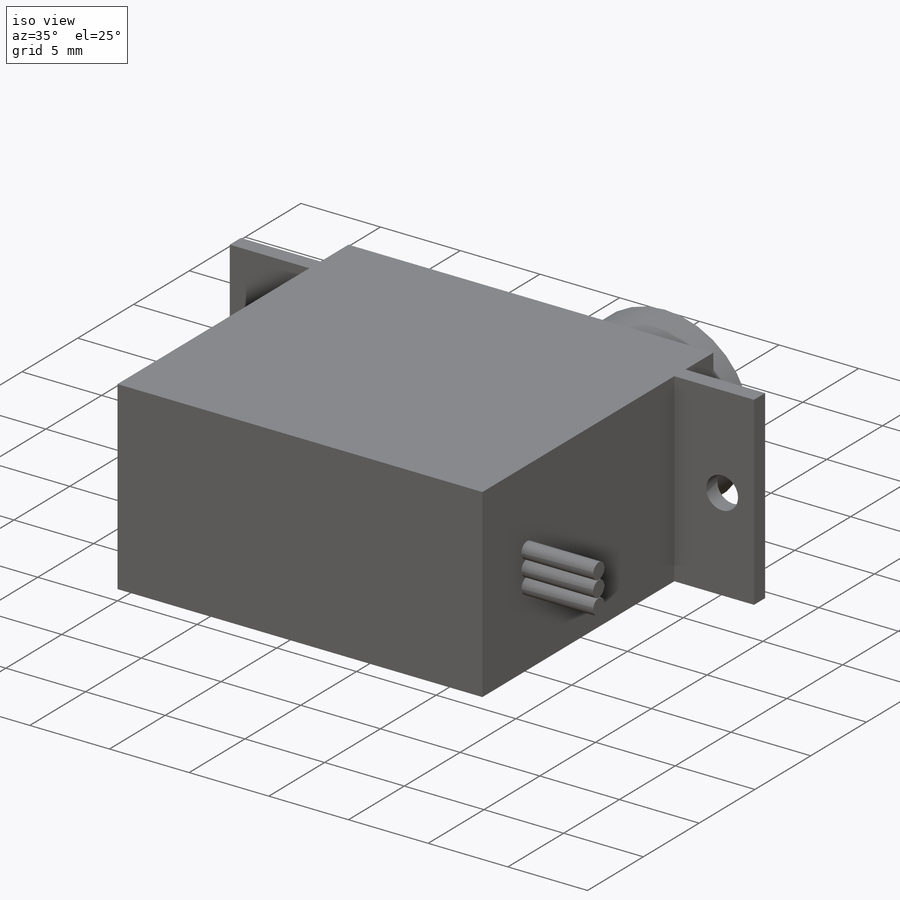
[diagram: iso view]
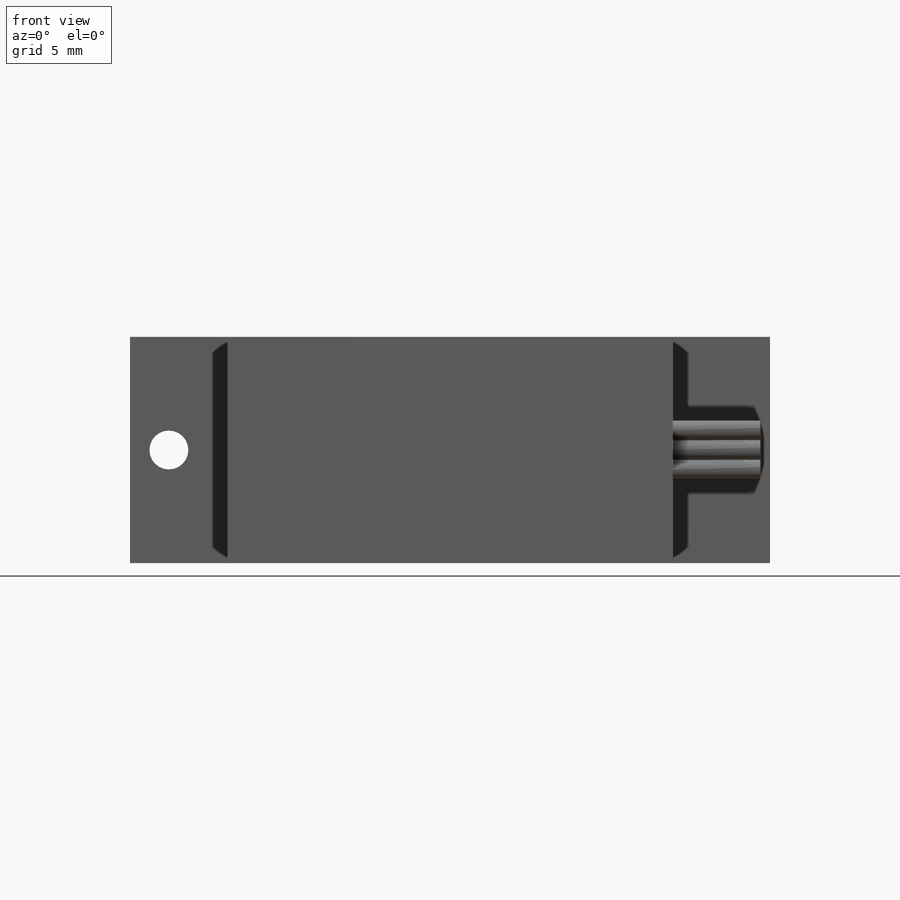
[diagram: front view]
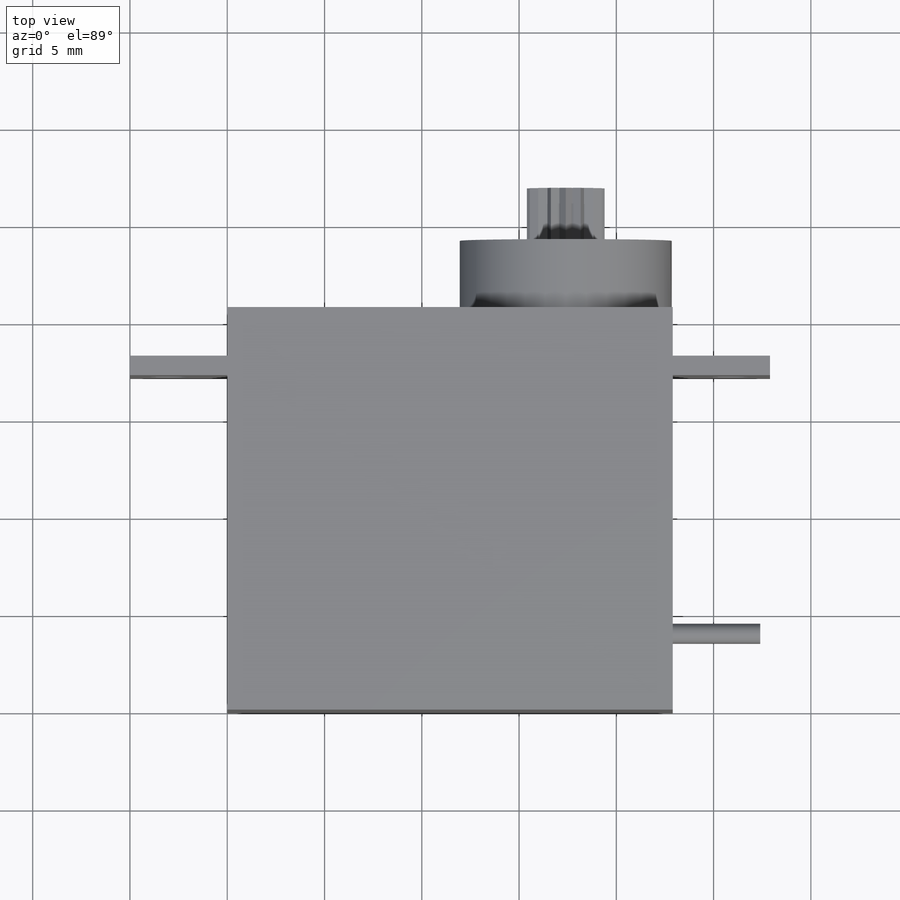
[diagram: top view]
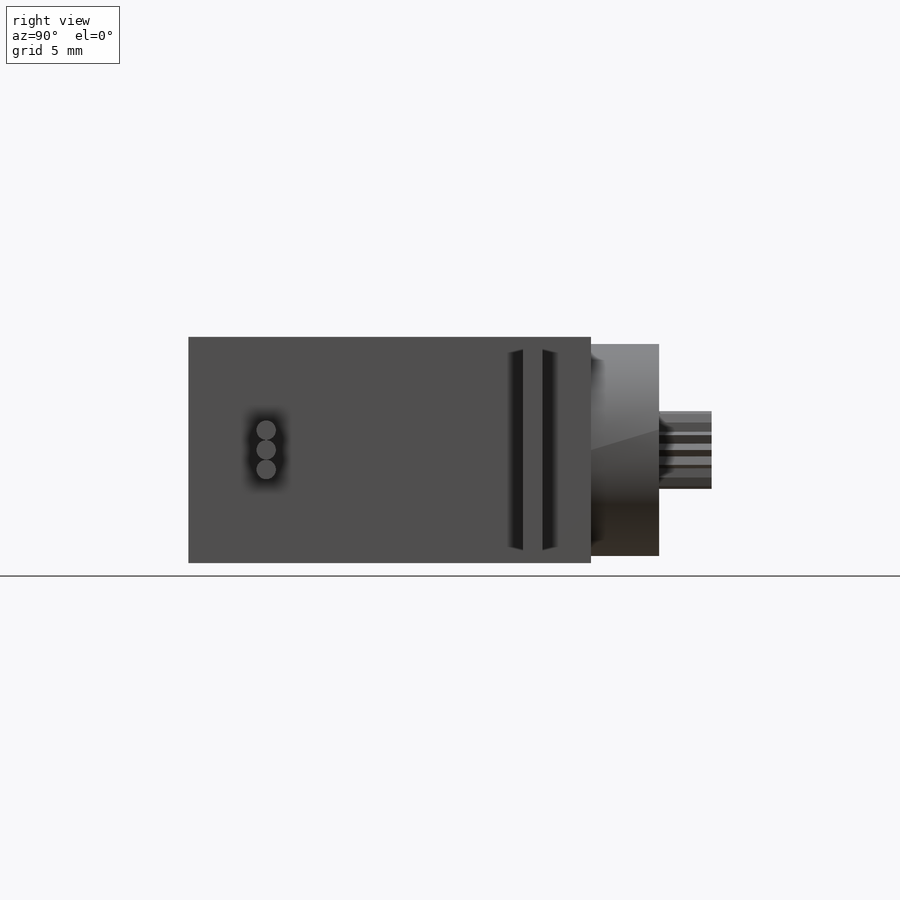
[diagram: right view]
SOLIDWORKS PART (.sldprt)
format: sldprt  version: not decoded by parser v0  size: 310,784 bytes
history: native  units: mm
features: sketch x9, extrude x7, cut_extrude x2, material x1, plane x1, mirror x1 (+11 scaffold rows collapsed)
feature tree (32):
  scaffold x11  (default folders/planes/origin — collapsed)
  material  "Material <not specified>"
  sketch  "Sketch1"  dims[D1=22.9mm D2=20.7mm]
  extrude  "Boss-Extrude1"  Depth=11.63mm
  sketch  "Sketch3"  dims[D2=10.9mm D1=5.5mm D3=5.815mm D4=11.63mm D5=~6.073998mm]
  extrude  "Boss-Extrude2"  Depth=3.5mm
  plane  "Plane1"
  sketch  "Sketch4"  dims[D1=3.5mm D2=1.0mm]
  extrude  "Boss-Extrude3"  Depth=5mm
  sketch  "Sketch5"  dims[D1=2.0mm D2=2.0mm]
  cut_extrude  "Cut-Extrude1"  [1 undecoded]
  mirror  "Mirror1"
  sketch  "Sketch6"  dims[c1.D1=2.0mm c1.D2=~1.923581mm c2.D2=22.5deg c2.D3=~1.923581mm c3.D3=11.25deg c3.D5=5.5mm c3.D4=16.0]
  extrude  "Boss-Extrude4"  Depth=2.2mm
  sketch  "Sketch8"  dims[D1=1.0mm D3=1.0mm D4=1.0mm D2=4.0mm]
  extrude  "Boss-Extrude6"  Depth=4.5mm
  sketch  "Sketch9"  dims[D1=1.0mm D2=1.01mm]
  sketch  "Sketch10"  dims[D1=1.0mm D2=1.01mm]
  extrude  "Boss-Extrude9"  Depth=4.5mm
  extrude  "Boss-Extrude10"  Depth=4.5mm
  sketch  "Sketch13"  dims[D1=1.0mm]
  cut_extrude  "Cut-Extrude2"  [1 undecoded]
decode coverage: 16 of 19 modeling features carry decoded parameters
note: ~ marks probable driven/reference dimensions
note: 2 parameter values undecoded
note: suppression state not decoded; provenance and decode notes live in map.json
